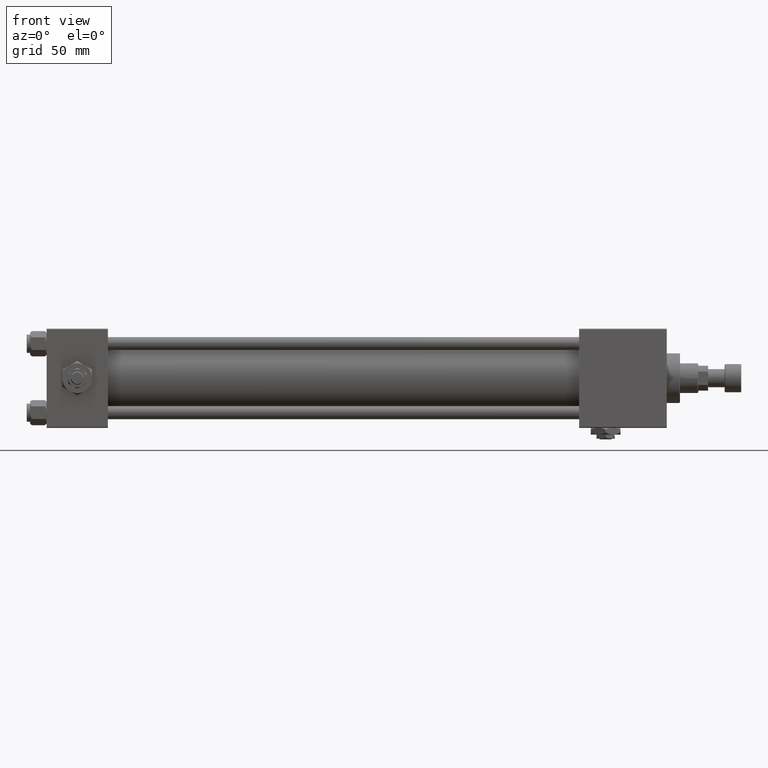
[diagram: clean part render]
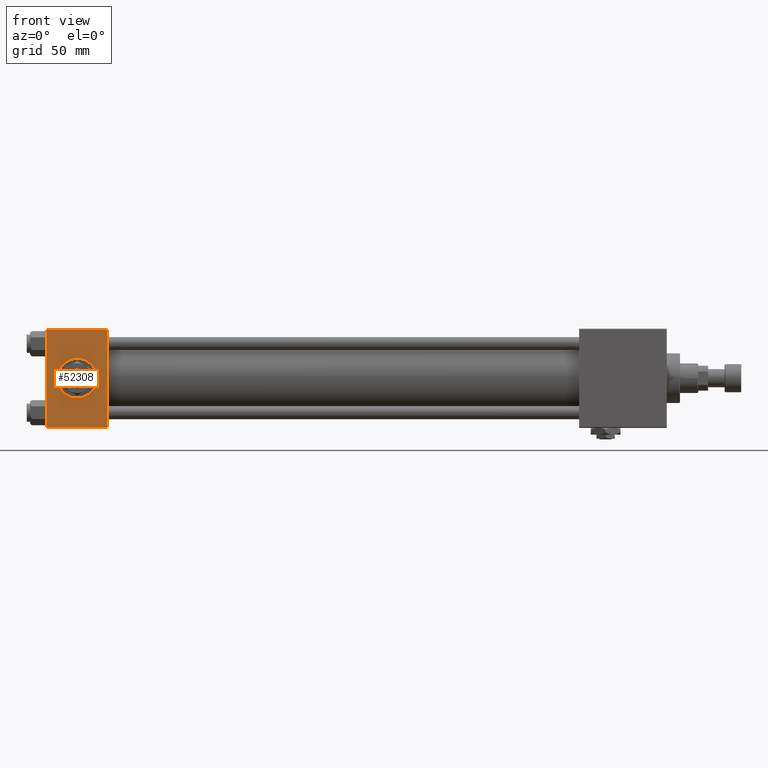
[diagram: same view with one face highlighted and labeled with its STEP entity id]
A machine part, front view. The second image highlights one B-rep face of the part: STEP entity #52308.
In plain terms, the highlighted planar face has unit normal (0, 1, 0).
Its self-contained STEP definition (entity closure, byte-faithful):
#163 = DIRECTION ( 'NONE',  ( -1.000000000000000000, 0.000000000000000000, 0.000000000000000000 ) ) ;
#1137 = ORIENTED_EDGE ( 'NONE', *, *, #27840, .T. ) ;
#2143 = VERTEX_POINT ( 'NONE', #46173 ) ;
#3453 = VECTOR ( 'NONE', #9173, 1000.000000000000000 ) ;
#4427 = CARTESIAN_POINT ( 'NONE',  ( 37.00000000000000000, -30.00000000000000000, 29.49999999999999289 ) ) ;
#5049 = CIRCLE ( 'NONE', #39025, 12.00000000000000178 ) ;
#7449 = PLANE ( 'NONE',  #38606 ) ;
#7692 = CARTESIAN_POINT ( 'NONE',  ( 18.50000000000000000, -30.00000000000000000, 0.000000000000000000 ) ) ;
#9173 = DIRECTION ( 'NONE',  ( 0.000000000000000000, 0.000000000000000000, -1.000000000000000000 ) ) ;
#9439 = CARTESIAN_POINT ( 'NONE',  ( 0.000000000000000000, -30.00000000000000000, 29.99999999999999289 ) ) ;
#9926 = CARTESIAN_POINT ( 'NONE',  ( 37.00000000000000000, -30.00000000000000000, 29.49999999999999289 ) ) ;
#11675 = VECTOR ( 'NONE', #163, 1000.000000000000000 ) ;
#11975 = DIRECTION ( 'NONE',  ( -0.000000000000000000, 1.000000000000000000, 0.000000000000000000 ) ) ;
#12248 = LINE ( 'NONE', #20748, #27213 ) ;
#12739 = ORIENTED_EDGE ( 'NONE', *, *, #39322, .T. ) ;
#12970 = DIRECTION ( 'NONE',  ( 0.000000000000000000, 0.000000000000000000, -1.000000000000000000 ) ) ;
#13961 = LINE ( 'NONE', #9439, #3453 ) ;
#16922 = CARTESIAN_POINT ( 'NONE',  ( 37.00000000000000000, -30.00000000000000000, 29.99999999999999289 ) ) ;
#17115 = EDGE_CURVE ( 'NONE', #2143, #26136, #30462, .T. ) ;
#20632 = DIRECTION ( 'NONE',  ( 0.000000000000000000, 0.000000000000000000, -1.000000000000000000 ) ) ;
#20748 = CARTESIAN_POINT ( 'NONE',  ( 37.00000000000000000, -30.00000000000000000, -29.50000000000001776 ) ) ;
#20935 = CARTESIAN_POINT ( 'NONE',  ( 18.50000000000000000, -30.00000000000000000, 0.000000000000000000 ) ) ;
#21668 = EDGE_CURVE ( 'NONE', #22939, #51522, #45123, .T. ) ;
#22084 = EDGE_LOOP ( 'NONE', ( #12739, #37801, #32254, #1137 ) ) ;
#22939 = VERTEX_POINT ( 'NONE', #9926 ) ;
#23299 = CARTESIAN_POINT ( 'NONE',  ( 18.50000000000000000, -30.00000000000000000, 12.00000000000000178 ) ) ;
#23666 = CARTESIAN_POINT ( 'NONE',  ( 37.00000000000000000, -30.00000000000000000, 29.99999999999999289 ) ) ;
#23932 = EDGE_CURVE ( 'NONE', #50639, #51522, #12248, .T. ) ;
#24614 = EDGE_LOOP ( 'NONE', ( #32147, #41645 ) ) ;
#26136 = VERTEX_POINT ( 'NONE', #23299 ) ;
#27213 = VECTOR ( 'NONE', #36970, 1000.000000000000000 ) ;
#27840 = EDGE_CURVE ( 'NONE', #22939, #52429, #29151, .T. ) ;
#28173 = DIRECTION ( 'NONE',  ( 0.000000000000000000, -0.000000000000000000, 1.000000000000000000 ) ) ;
#28414 = DIRECTION ( 'NONE',  ( 0.000000000000000000, -1.000000000000000000, -8.673617379884036705E-17 ) ) ;
#29151 = LINE ( 'NONE', #4427, #11675 ) ;
#30462 = CIRCLE ( 'NONE', #37255, 12.00000000000000178 ) ;
#32147 = ORIENTED_EDGE ( 'NONE', *, *, #17115, .F. ) ;
#32254 = ORIENTED_EDGE ( 'NONE', *, *, #21668, .F. ) ;
#35311 = CARTESIAN_POINT ( 'NONE',  ( 0.000000000000000000, -30.00000000000000000, 29.49999999999999289 ) ) ;
#35344 = DIRECTION ( 'NONE',  ( 0.000000000000000000, 0.000000000000000000, -1.000000000000000000 ) ) ;
#35642 = FACE_OUTER_BOUND ( 'NONE', #22084, .T. ) ;
#36365 = EDGE_CURVE ( 'NONE', #26136, #2143, #5049, .T. ) ;
#36970 = DIRECTION ( 'NONE',  ( 1.000000000000000000, 0.000000000000000000, 0.000000000000000000 ) ) ;
#37255 = AXIS2_PLACEMENT_3D ( 'NONE', #20935, #48893, #12970 ) ;
#37801 = ORIENTED_EDGE ( 'NONE', *, *, #23932, .T. ) ;
#38606 = AXIS2_PLACEMENT_3D ( 'NONE', #23666, #11975, #28173 ) ;
#39025 = AXIS2_PLACEMENT_3D ( 'NONE', #7692, #28414, #35344 ) ;
#39322 = EDGE_CURVE ( 'NONE', #52429, #50639, #13961, .T. ) ;
#41580 = VECTOR ( 'NONE', #20632, 1000.000000000000000 ) ;
#41645 = ORIENTED_EDGE ( 'NONE', *, *, #36365, .F. ) ;
#45123 = LINE ( 'NONE', #16922, #41580 ) ;
#45248 = CARTESIAN_POINT ( 'NONE',  ( 37.00000000000000000, -30.00000000000000000, -29.50000000000001776 ) ) ;
#45500 = CARTESIAN_POINT ( 'NONE',  ( 0.000000000000000000, -30.00000000000000000, -29.50000000000001776 ) ) ;
#46173 = CARTESIAN_POINT ( 'NONE',  ( 18.50000000000000000, -30.00000000000000000, -12.00000000000000178 ) ) ;
#48422 = FACE_BOUND ( 'NONE', #24614, .T. ) ;
#48893 = DIRECTION ( 'NONE',  ( 0.000000000000000000, -1.000000000000000000, -8.673617379884036705E-17 ) ) ;
#50639 = VERTEX_POINT ( 'NONE', #45500 ) ;
#51522 = VERTEX_POINT ( 'NONE', #45248 ) ;
#52308 = ADVANCED_FACE ( 'NONE', ( #48422, #35642 ), #7449, .F. ) ;
#52429 = VERTEX_POINT ( 'NONE', #35311 ) ;